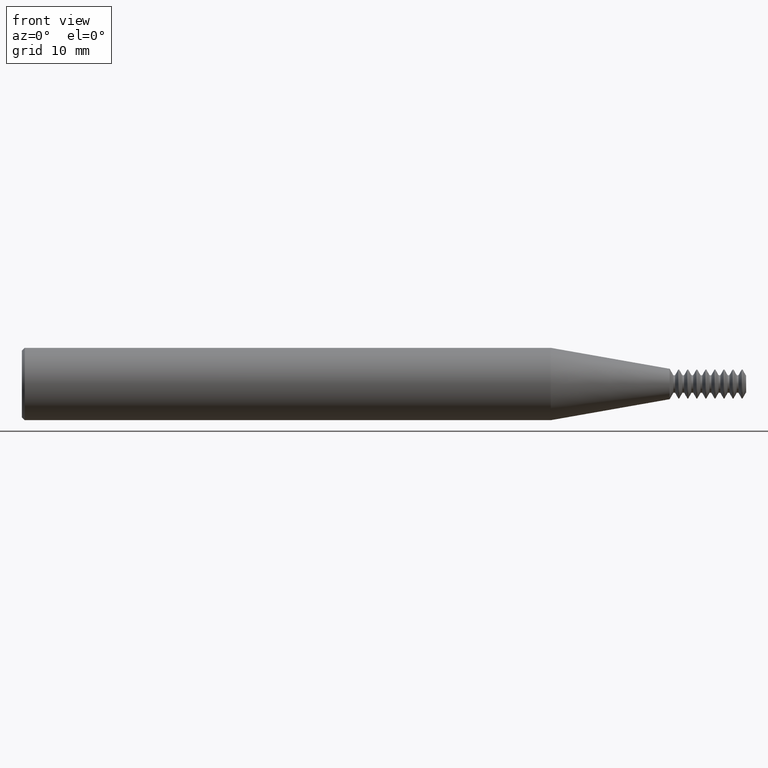
[diagram: clean part render]
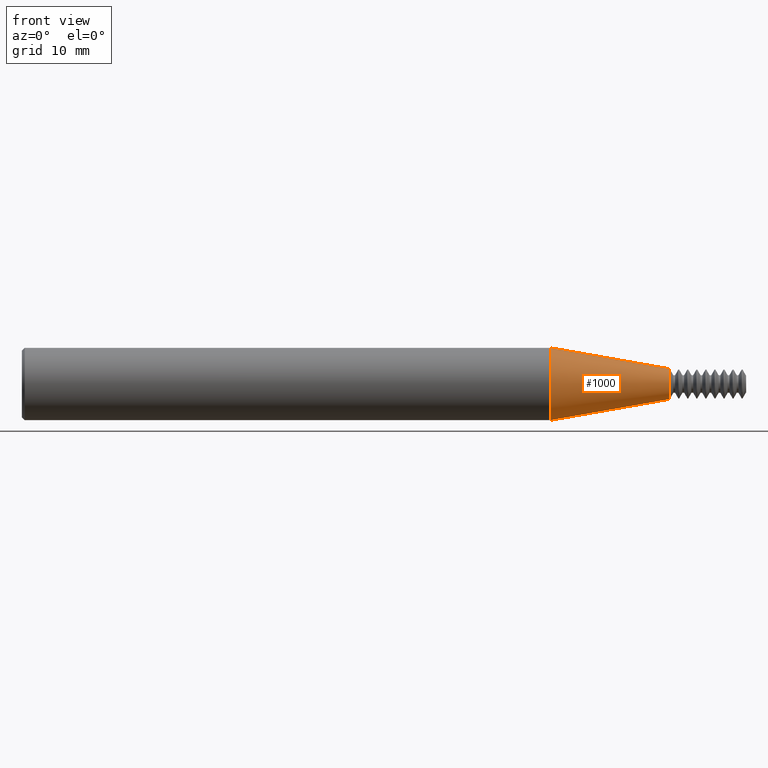
[diagram: same view with one face highlighted and labeled with its STEP entity id]
A machine part, front view. The second image highlights one B-rep face of the part: STEP entity #1000.
In plain terms, the highlighted conical surface has half-angle 10 deg.
Its self-contained STEP definition (entity closure, byte-faithful):
#74 = EDGE_LOOP ( 'NONE', ( #1959, #1193, #1255, #906 ) ) ;
#149 = CIRCLE ( 'NONE', #445, 0.05249999999999999806 ) ;
#226 = DIRECTION ( 'NONE',  ( 0.000000000000000000, 0.000000000000000000, -1.000000000000000000 ) ) ;
#244 = FACE_OUTER_BOUND ( 'NONE', #74, .T. ) ;
#265 = CARTESIAN_POINT ( 'NONE',  ( 2.236000000000000210, 0.000000000000000000, 0.000000000000000000 ) ) ;
#306 = VERTEX_POINT ( 'NONE', #1742 ) ;
#392 = DIRECTION ( 'NONE',  ( 1.000000000000000000, -0.000000000000000000, -0.000000000000000000 ) ) ;
#428 = CARTESIAN_POINT ( 'NONE',  ( 2.236000000000000210, 6.429395695523603968E-18, -0.05249999999999999806 ) ) ;
#445 = AXIS2_PLACEMENT_3D ( 'NONE', #1169, #392, #226 ) ;
#464 = VECTOR ( 'NONE', #1947, 39.37007874015748143 ) ;
#627 = DIRECTION ( 'NONE',  ( -1.000000000000000000, 0.000000000000000000, 0.000000000000000000 ) ) ;
#677 = CARTESIAN_POINT ( 'NONE',  ( 1.825682760350659795, 0.000000000000000000, -0.1248500000000000026 ) ) ;
#788 = AXIS2_PLACEMENT_3D ( 'NONE', #265, #627, #1841 ) ;
#876 = LINE ( 'NONE', #1012, #464 ) ;
#883 = LINE ( 'NONE', #428, #1324 ) ;
#891 = DIRECTION ( 'NONE',  ( 1.000000000000000000, -0.000000000000000000, -0.000000000000000000 ) ) ;
#906 = ORIENTED_EDGE ( 'NONE', *, *, #1025, .T. ) ;
#920 = DIRECTION ( 'NONE',  ( -0.9848077530122080203, 2.126576849575776537E-17, -0.1736481776669307475 ) ) ;
#936 = VERTEX_POINT ( 'NONE', #1326 ) ;
#993 = AXIS2_PLACEMENT_3D ( 'NONE', #1206, #891, #1991 ) ;
#1000 = ADVANCED_FACE ( 'NONE', ( #244 ), #1672, .T. ) ;
#1012 = CARTESIAN_POINT ( 'NONE',  ( 2.236000000000000210, 0.000000000000000000, 0.05249999999999999806 ) ) ;
#1025 = EDGE_CURVE ( 'NONE', #306, #1141, #1705, .T. ) ;
#1072 = CARTESIAN_POINT ( 'NONE',  ( 2.236000000000000210, 0.000000000000000000, 0.05249999999999999806 ) ) ;
#1141 = VERTEX_POINT ( 'NONE', #677 ) ;
#1169 = CARTESIAN_POINT ( 'NONE',  ( 2.236000000000000210, 0.000000000000000000, 0.000000000000000000 ) ) ;
#1193 = ORIENTED_EDGE ( 'NONE', *, *, #1661, .F. ) ;
#1206 = CARTESIAN_POINT ( 'NONE',  ( 1.825682760350659795, 0.000000000000000000, 0.000000000000000000 ) ) ;
#1255 = ORIENTED_EDGE ( 'NONE', *, *, #1294, .T. ) ;
#1294 = EDGE_CURVE ( 'NONE', #1417, #306, #876, .T. ) ;
#1324 = VECTOR ( 'NONE', #920, 39.37007874015748143 ) ;
#1326 = CARTESIAN_POINT ( 'NONE',  ( 2.236000000000000210, 1.085955549143915332E-17, -0.05249999999999999806 ) ) ;
#1417 = VERTEX_POINT ( 'NONE', #1072 ) ;
#1661 = EDGE_CURVE ( 'NONE', #1417, #936, #149, .T. ) ;
#1672 = CONICAL_SURFACE ( 'NONE', #788, 0.05249999999999999806, 0.1745329251994333641 ) ;
#1705 = CIRCLE ( 'NONE', #993, 0.1248500000000000026 ) ;
#1742 = CARTESIAN_POINT ( 'NONE',  ( 1.825682760350659795, 1.528971528735470422E-17, 0.1248500000000000026 ) ) ;
#1841 = DIRECTION ( 'NONE',  ( 0.000000000000000000, 0.000000000000000000, 1.000000000000000000 ) ) ;
#1871 = EDGE_CURVE ( 'NONE', #936, #1141, #883, .T. ) ;
#1947 = DIRECTION ( 'NONE',  ( -0.9848077530122080203, 0.000000000000000000, 0.1736481776669307475 ) ) ;
#1959 = ORIENTED_EDGE ( 'NONE', *, *, #1871, .F. ) ;
#1991 = DIRECTION ( 'NONE',  ( 0.000000000000000000, 0.000000000000000000, -1.000000000000000000 ) ) ;